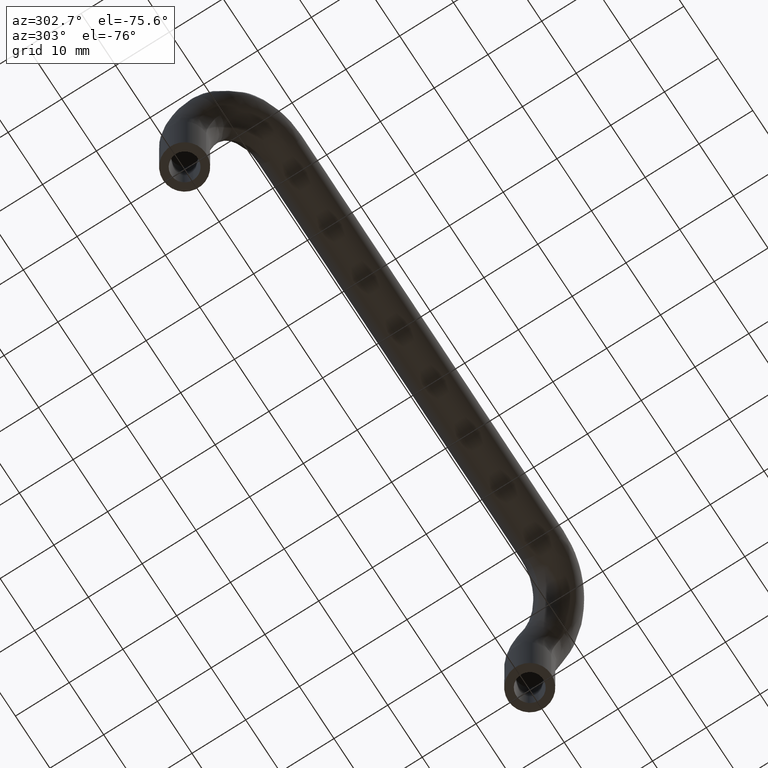
[diagram: clean part render]
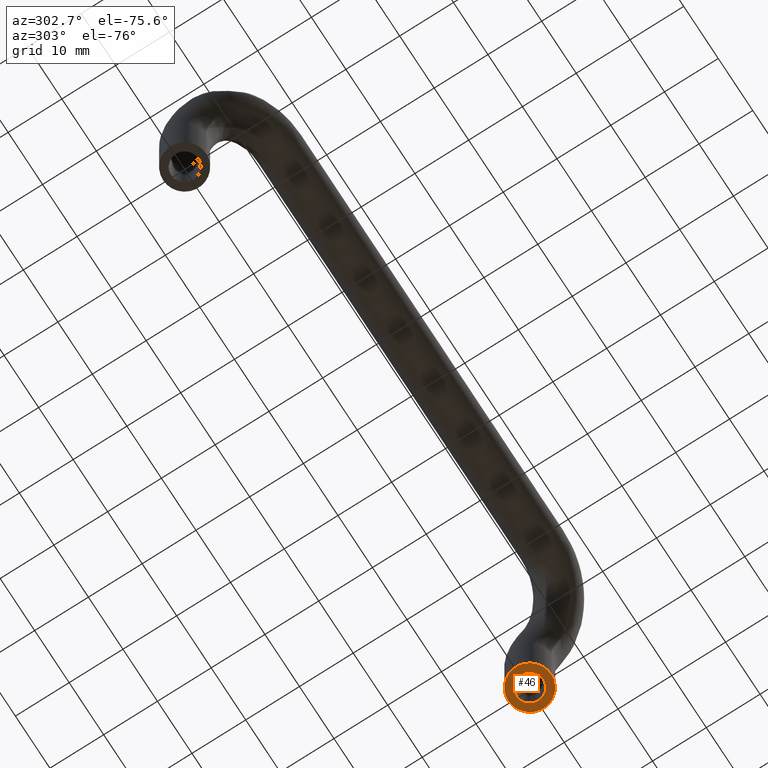
[diagram: same view with one face highlighted and labeled with its STEP entity id]
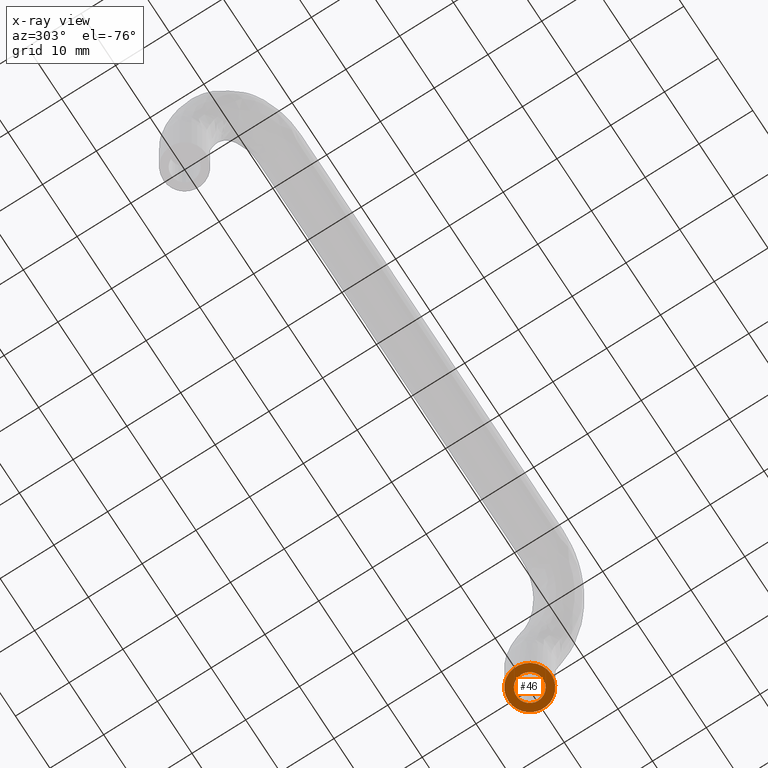
[diagram: x-ray of the same camera — body ghosted, the highlighted face saturated]
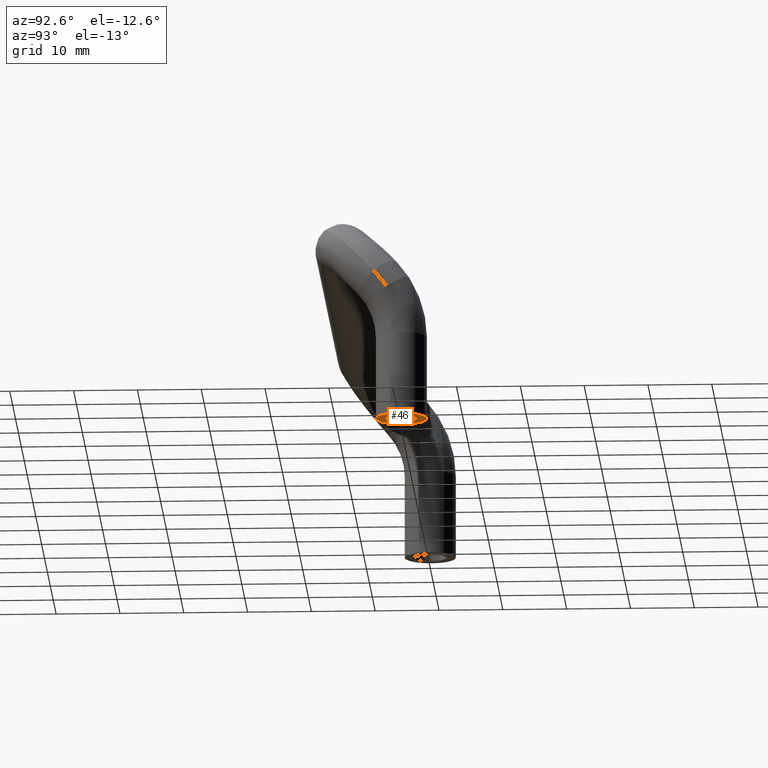
[diagram: same view with one face highlighted and labeled with its STEP entity id]
A machine part, auxiliary view. The second image highlights one B-rep face of the part: STEP entity #46.
The next image is the same camera in x-ray: the body ghosted, the highlighted face saturated — about 0% of this face is hidden behind the body in this view.
A second angle (auxiliary view) of the same face is appended — the face is thin or edge-on in the first view.
In plain terms, the highlighted planar face has unit normal (0, 0, -1).
Its self-contained STEP definition (entity closure, byte-faithful):
#46=ADVANCED_FACE('',(#132,#133),#131,.T.);
#131=PLANE('',#514);
#132=FACE_OUTER_BOUND('',#515,.T.);
#133=FACE_BOUND('',#516,.T.);
#511=CARTESIAN_POINT('',(4.16861561238E+01,4.79999999999E+00,-2.54999999999E+01));
#512=DIRECTION('',(0.00000000000E+00,5.89805981826E-13,-1.00000000000E+00));
#513=DIRECTION('',(0.00000000000E+00,1.00000000000E+00,5.89805981826E-13));
#514=AXIS2_PLACEMENT_3D('',#511,#512,#513);
#515=EDGE_LOOP('',(#890,#891));
#516=EDGE_LOOP('',(#892,#893));
#890=ORIENTED_EDGE('',*,*,#1024,.T.);
#891=ORIENTED_EDGE('',*,*,#1025,.T.);
#892=ORIENTED_EDGE('',*,*,#1026,.F.);
#893=ORIENTED_EDGE('',*,*,#1027,.F.);
#1024=EDGE_CURVE('',#1210,#1211,#1212,.T.);
#1025=EDGE_CURVE('',#1211,#1210,#1218,.T.);
#1026=EDGE_CURVE('',#1224,#1225,#1226,.T.);
#1027=EDGE_CURVE('',#1225,#1224,#1232,.T.);
#1210=VERTEX_POINT('',#1620);
#1211=VERTEX_POINT('',#1621);
#1212=CIRCLE('',#1625,4.00000000000E+00);
#1218=CIRCLE('',#1629,4.00000000000E+00);
#1224=VERTEX_POINT('',#1630);
#1225=VERTEX_POINT('',#1631);
#1226=CIRCLE('',#1635,2.50000000000E+00);
#1232=CIRCLE('',#1639,2.50000000000E+00);
#1620=CARTESIAN_POINT('',(5.00000000001E+01,5.99999999999E+00,-2.54999999999E+01));
#1621=CARTESIAN_POINT('',(5.00000000001E+01,1.40000000000E+01,-2.54999999999E+01));
#1622=CARTESIAN_POINT('',(5.00000000001E+01,9.99999999999E+00,-2.54999999999E+01));
#1623=DIRECTION('',(2.24207754292E-44,5.89750470679E-13,-1.00000000000E+00));
#1624=DIRECTION('',(-0.00000000000E+00,-1.00000000000E+00,-5.89750470679E-13));
#1625=AXIS2_PLACEMENT_3D('',#1622,#1623,#1624);
#1626=CARTESIAN_POINT('',(5.00000000001E+01,9.99999999999E+00,-2.54999999999E+01));
#1627=DIRECTION('',(2.24207754292E-44,5.89750470679E-13,-1.00000000000E+00));
#1628=DIRECTION('',(-0.00000000000E+00,-1.00000000000E+00,-5.89750470679E-13));
#1629=AXIS2_PLACEMENT_3D('',#1626,#1627,#1628);
#1630=CARTESIAN_POINT('',(4.75000000001E+01,1.00000000002E+01,-2.55000000000E+01));
#1631=CARTESIAN_POINT('',(5.25000000001E+01,1.00000000002E+01,-2.55000000000E+01));
#1632=CARTESIAN_POINT('',(5.00000000001E+01,1.00000000002E+01,-2.55000000000E+01));
#1633=DIRECTION('',(0.00000000000E+00,0.00000000000E+00,-1.00000000000E+00));
#1634=DIRECTION('',(1.00000000000E+00,-0.00000000000E+00,-0.00000000000E+00));
#1635=AXIS2_PLACEMENT_3D('',#1632,#1633,#1634);
#1636=CARTESIAN_POINT('',(5.00000000001E+01,1.00000000002E+01,-2.55000000000E+01));
#1637=DIRECTION('',(0.00000000000E+00,0.00000000000E+00,-1.00000000000E+00));
#1638=DIRECTION('',(1.00000000000E+00,-0.00000000000E+00,-0.00000000000E+00));
#1639=AXIS2_PLACEMENT_3D('',#1636,#1637,#1638);